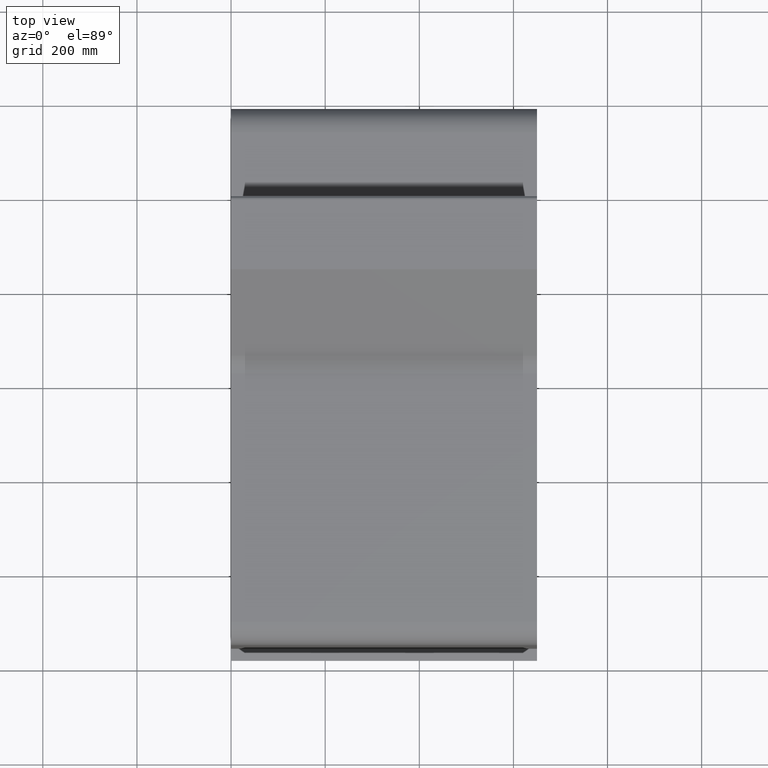
[diagram: clean part render]
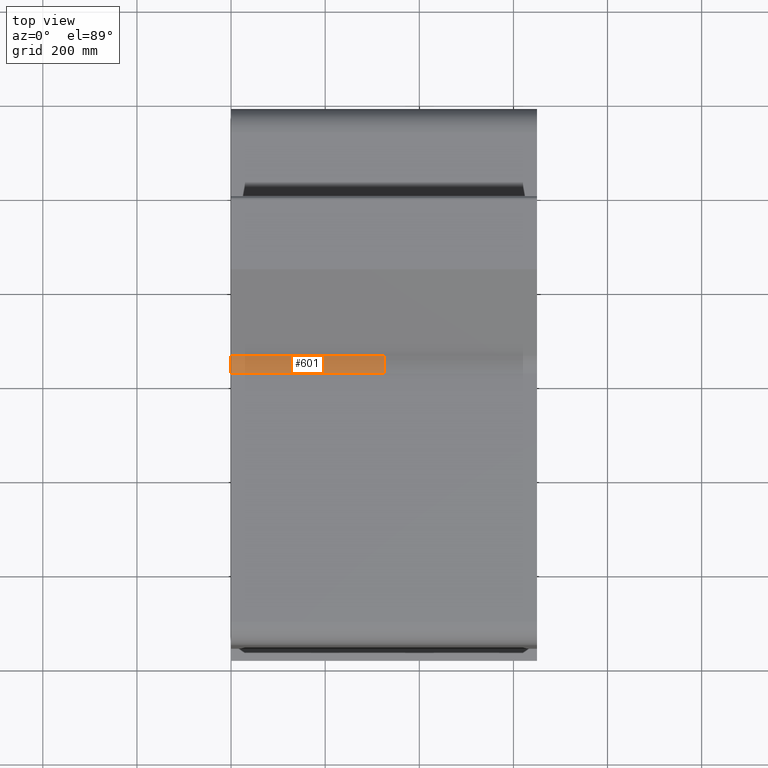
[diagram: same view with one face highlighted and labeled with its STEP entity id]
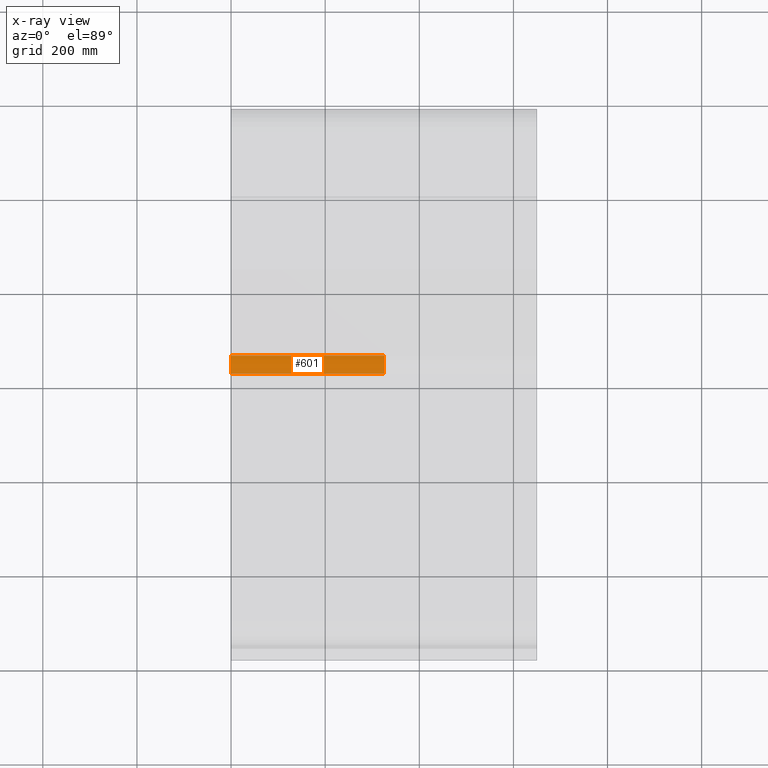
[diagram: x-ray of the same camera — body ghosted, the highlighted face saturated]
A machine part, top view. The second image highlights one B-rep face of the part: STEP entity #601.
The next image is the same camera in x-ray: the body ghosted, the highlighted face saturated — about 0% of this face is hidden behind the body in this view.
In plain terms, the highlighted cylindrical surface (edge-blend (fillet) strip) has radius 50.0065 mm, axis along (1, 0, 0).
Its self-contained STEP definition (entity closure, byte-faithful):
#543=CARTESIAN_POINT('',(325.00000000000011,-178.47690988319982,497.50000000000011));
#544=VERTEX_POINT('',#543);
#551=CARTESIAN_POINT('',(0.0,-178.47690988319982,497.50000000000011));
#552=VERTEX_POINT('',#551);
#553=CARTESIAN_POINT('',(0.0,-178.47690988319982,497.50000000000011));
#554=DIRECTION('',(1.0,0.0,0.0));
#555=VECTOR('',#554,325.00000000000011);
#556=LINE('',#553,#555);
#557=EDGE_CURVE('',#552,#544,#556,.T.);
#569=CARTESIAN_POINT('',(0.0,-178.82641248820676,547.50529319541261));
#570=DIRECTION('',(1.0,0.0,0.0));
#571=DIRECTION('',(0.0,0.425873332777177,-0.904782794061238));
#572=AXIS2_PLACEMENT_3D('',#569,#570,#571);
#573=CYLINDRICAL_SURFACE('',#572,50.006514571904262);
#574=CARTESIAN_POINT('',(325.00000000000011,-140.51277227641719,515.3693869011812));
#575=VERTEX_POINT('',#574);
#576=CARTESIAN_POINT('',(325.00000000000011,-178.82641248820676,547.50529319541261));
#577=DIRECTION('',(1.0,0.0,0.0));
#578=DIRECTION('',(0.0,0.425873332777177,-0.904782794061238));
#579=AXIS2_PLACEMENT_3D('',#576,#577,#578);
#580=CIRCLE('',#579,50.006514571904255);
#581=EDGE_CURVE('',#544,#575,#580,.T.);
#582=ORIENTED_EDGE('',*,*,#581,.T.);
#583=CARTESIAN_POINT('',(0.0,-140.51277227641719,515.3693869011812));
#584=VERTEX_POINT('',#583);
#585=CARTESIAN_POINT('',(0.0,-140.51277227641719,515.3693869011812));
#586=DIRECTION('',(1.0,0.0,0.0));
#587=VECTOR('',#586,325.00000000000011);
#588=LINE('',#585,#587);
#589=EDGE_CURVE('',#584,#575,#588,.T.);
#590=ORIENTED_EDGE('',*,*,#589,.F.);
#591=CARTESIAN_POINT('',(0.0,-178.82641248820676,547.50529319541261));
#592=DIRECTION('',(1.0,0.0,0.0));
#593=DIRECTION('',(0.0,0.425873332777177,-0.904782794061238));
#594=AXIS2_PLACEMENT_3D('',#591,#592,#593);
#595=CIRCLE('',#594,50.006514571904255);
#596=EDGE_CURVE('',#552,#584,#595,.T.);
#597=ORIENTED_EDGE('',*,*,#596,.F.);
#598=ORIENTED_EDGE('',*,*,#557,.T.);
#599=EDGE_LOOP('',(#582,#590,#597,#598));
#600=FACE_OUTER_BOUND('',#599,.T.);
#601=ADVANCED_FACE('',(#600),#573,.F.);